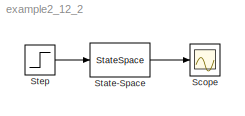
MODEL example2_12_2
KIND model
BLOCK [Scope] Scope
  NumInputPorts = 1
  Ports = [1]
  SID = 2
  ScopeSpecificationString = Simulink.scopes.TimeScopeBlockCfg('CurrentConfiguration', extmgr.ConfigurationSet(extmgr.Configuration('Core','General UI',true),extmgr.Configuration('Core','Source UI',true),extmgr.Configuration('Sources','WiredSimulink',true),extmgr.Configuration('Visuals','Time Domain',true,'SerializedDisplays',{struct('MinYLimReal','-0.28804','MaxYLimReal','2.59236','YLabelReal','','MinYLimMag','0.00000','MaxY...<+1331ch>
BLOCK [StateSpace] State-Space
  A = [-R/L,-1/L;1/C,0]
  B = [1/L;0]
  C = [0,1]
  InitialCondition = 0
  Ports = [1, 1]
  SID = 1
BLOCK [Step] Step
  SID = 3
  SampleTime = 0
  Time = 1E-4
LINE State-Space:1 -> Scope:1
LINE Step:1 -> State-Space:1
